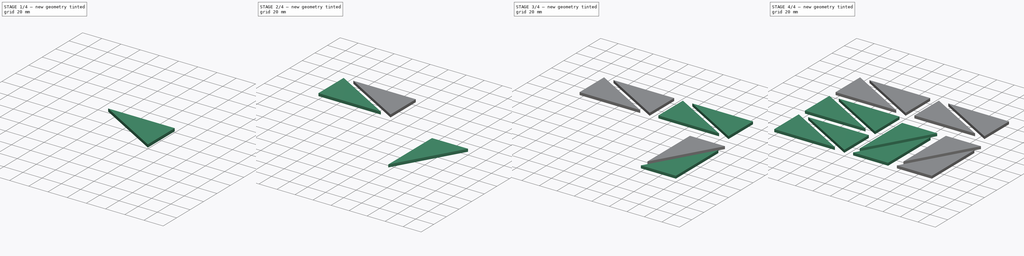
[diagram: build sequence overview — one tinted view per stage of 4, left to right]
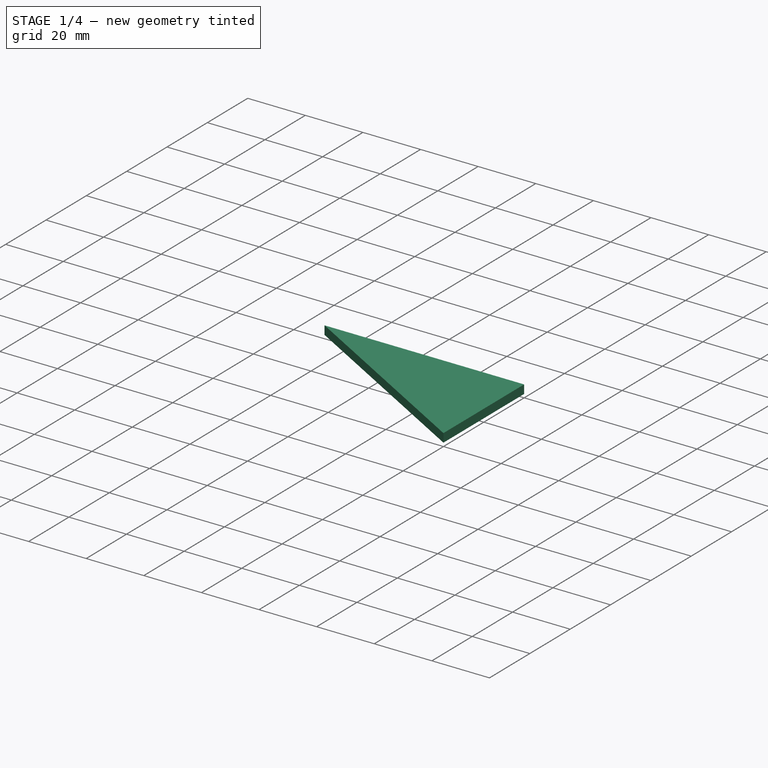
[diagram: stage 1 of 4 — iso view after this stage's code; geometry added in this stage tinted green]
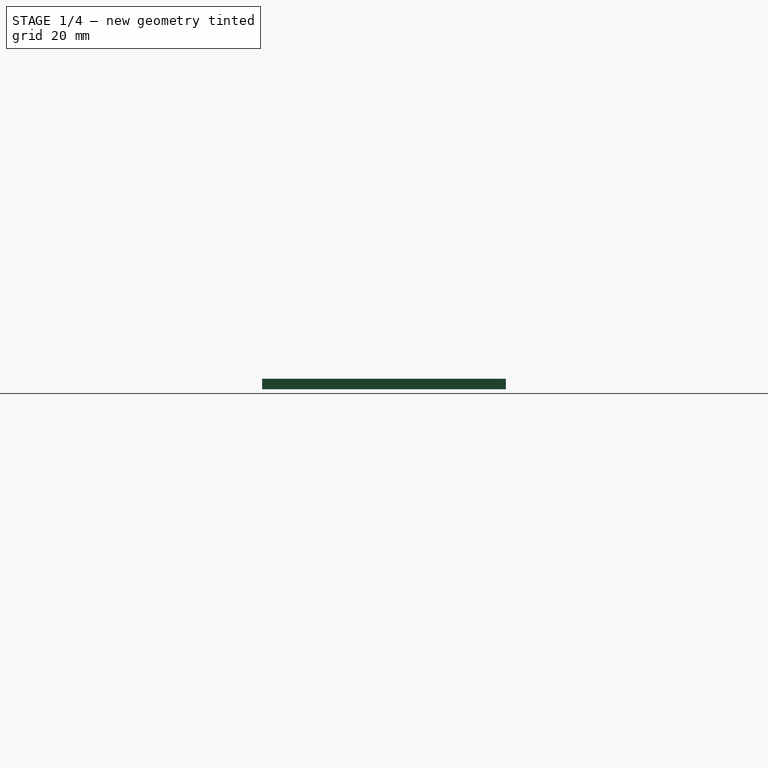
[diagram: stage 1 of 4 — front view after this stage's code; geometry added in this stage tinted green]
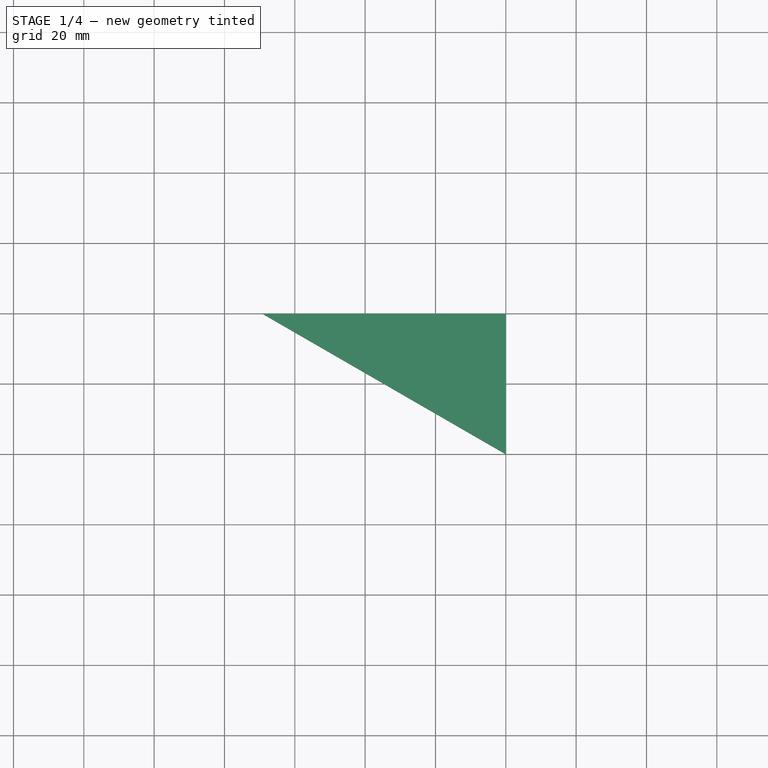
[diagram: stage 1 of 4 — top view after this stage's code; geometry added in this stage tinted green]
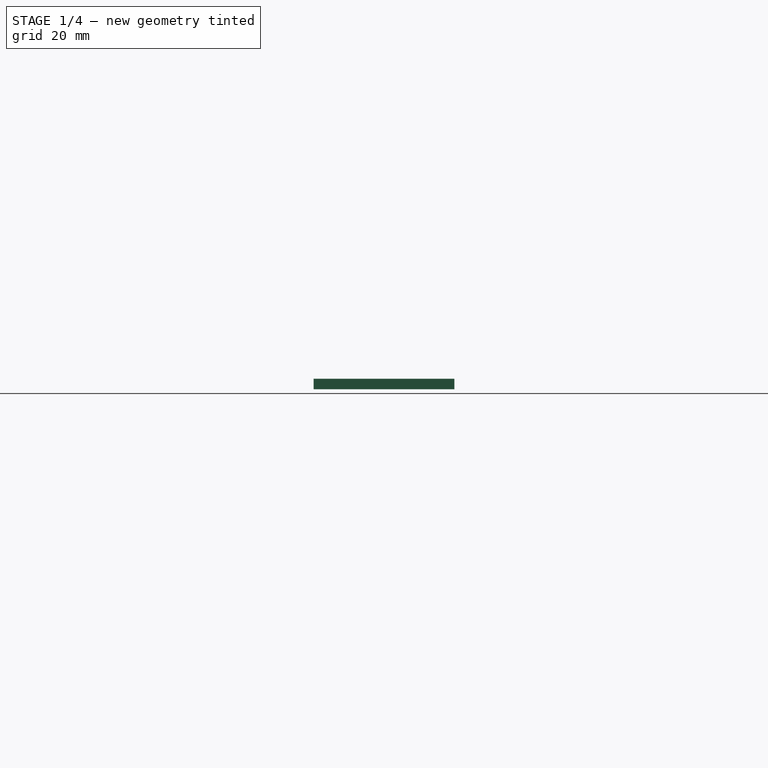
[diagram: stage 1 of 4 — right view after this stage's code; geometry added in this stage tinted green]
FCSTD DOCUMENT  (FreeCAD 0.17R13247 (Git))
Label: Triangulos-constructivos_parametricos
License: CreativeCommons Attribution-ShareAlike
LicenseURL: http://creativecommons.org/licenses/by-sa/4.0/
objects: Part::FeaturePython×11, Sketcher::SketchObject×1, PartDesign::Pad×1, PartDesign::Body×1, Spreadsheet::Sheet×1, Part::MultiFuse×1
note: 16 computed .brp shape members not serialized (recipe doc carries the construction recipe); baked Part::Feature solids carry a one-line shape summary decoded from their .brp

FEATURE [Sketcher::SketchObject] Sketch  label="Triangulo-rectangulo-30grados"
  MapMode = 5
  Support = -> [XY_Plane]
  expr: Constraints[7] = Hoja_parametrizar_lado.lado
  sketch-geometry (3):
    g0: LineSegment StartX=0 StartY=40 StartZ=0 EndX=0 EndY=0 EndZ=0
    g1: LineSegment StartX=0 StartY=0 StartZ=0 EndX=69.282 EndY=0 EndZ=0
    g2: LineSegment StartX=69.282 StartY=0 StartZ=0 EndX=0 EndY=40 EndZ=0
  constraints (8):
    c: PointOnObject(g0,g-2)
    c: Coincident(g0,g-1)
    c: Coincident(g0,g1)
    c: Horizontal(g1)
    c: Coincident(g1,g2)
    c: Coincident(g2,g0)
    c: Angle(g2,g1) = 0.523599
    c: DistanceY(g0,g0) = 40
FEATURE [PartDesign::Pad] Pad  label="Triangulo-constructor"
  Length = 3
  Length2 = 100
  Profile = -> Sketch
  Refine = true
  Type = 0
FEATURE [PartDesign::Body] Body
  Group = -> [Sketch,Pad]
  Origin = -> Origin
  Tip = -> Pad
FEATURE [Part::FeaturePython] Clone  label="Triangulo-constructor2"  # Draft clone (typed FeaturePython)
  AttacherType = Attacher::AttachEngine3D
  Fuse = false
  Objects = -> [Pad]
  Placement = pos=(80,40,0) rot=(0,0,1;3.14159rad)
  Scale = (1,1,1)
  expr: Placement.Base.y = Hoja_parametrizar_lado.lado
  expr: Placement.Base.x = Hoja_parametrizar_lado.lado * 2
FEATURE [Part::FeaturePython] Clone010  label="Triangulo-constructor12"  # Draft clone (typed FeaturePython)
  AttacherType = Attacher::AttachEngine3D
  Fuse = false
  Objects = -> [Clone]
  Placement = pos=(80,140,0) rot=(0,0,1;3.14159rad)
  Scale = (1,1,1)
  expr: Placement.Base.x = Hoja_parametrizar_lado.lado * 2
  expr: Placement.Base.y = Hoja_parametrizar_lado.lado * 3 + 20
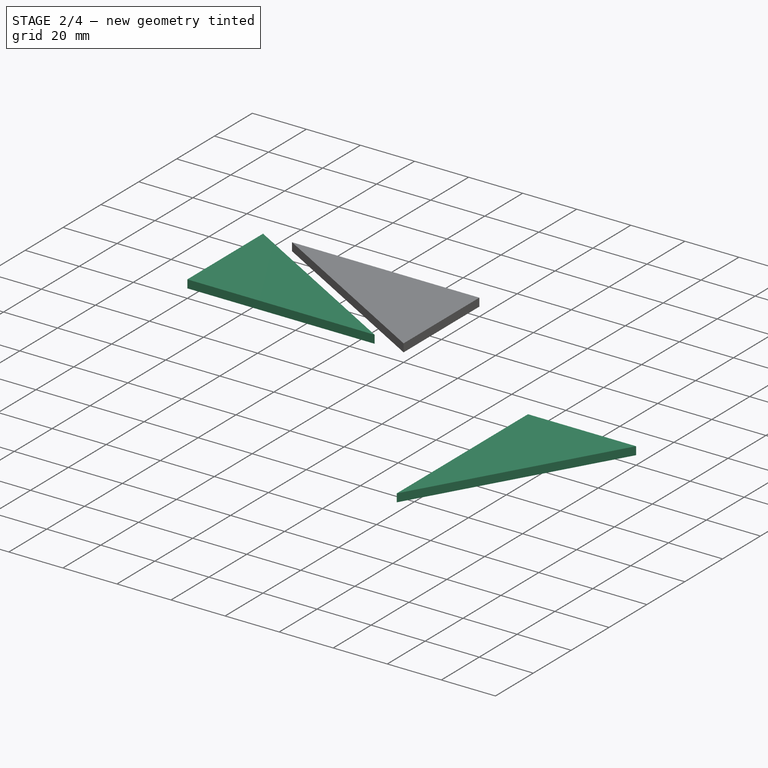
[diagram: stage 2 of 4 — iso view after this stage's code; geometry added in this stage tinted green]
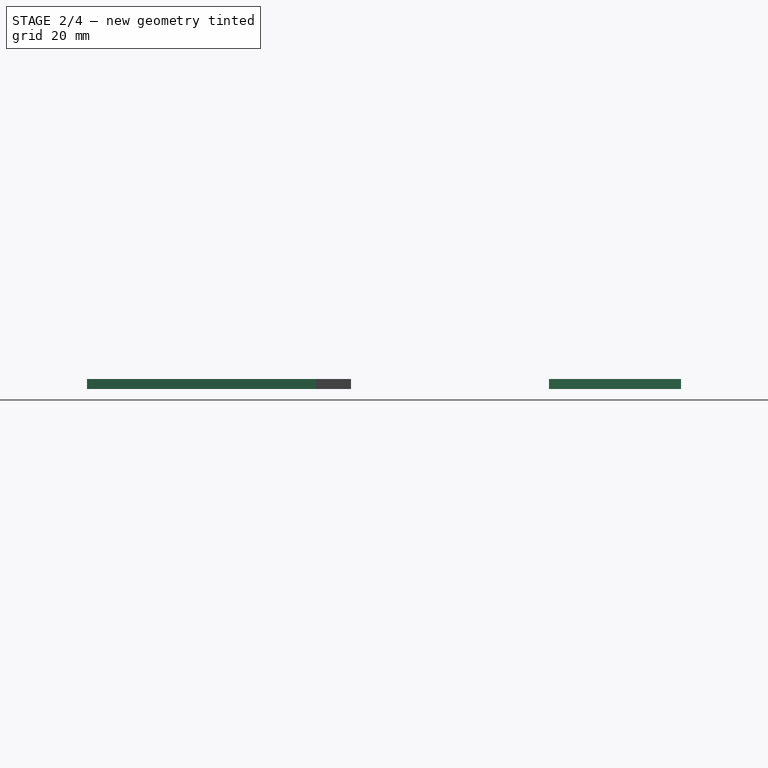
[diagram: stage 2 of 4 — front view after this stage's code; geometry added in this stage tinted green]
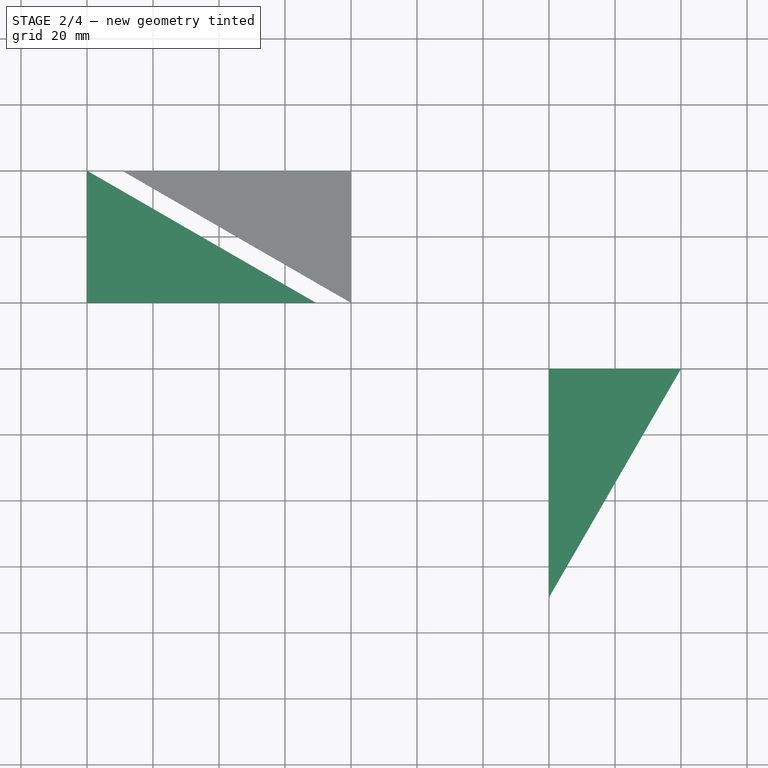
[diagram: stage 2 of 4 — top view after this stage's code; geometry added in this stage tinted green]
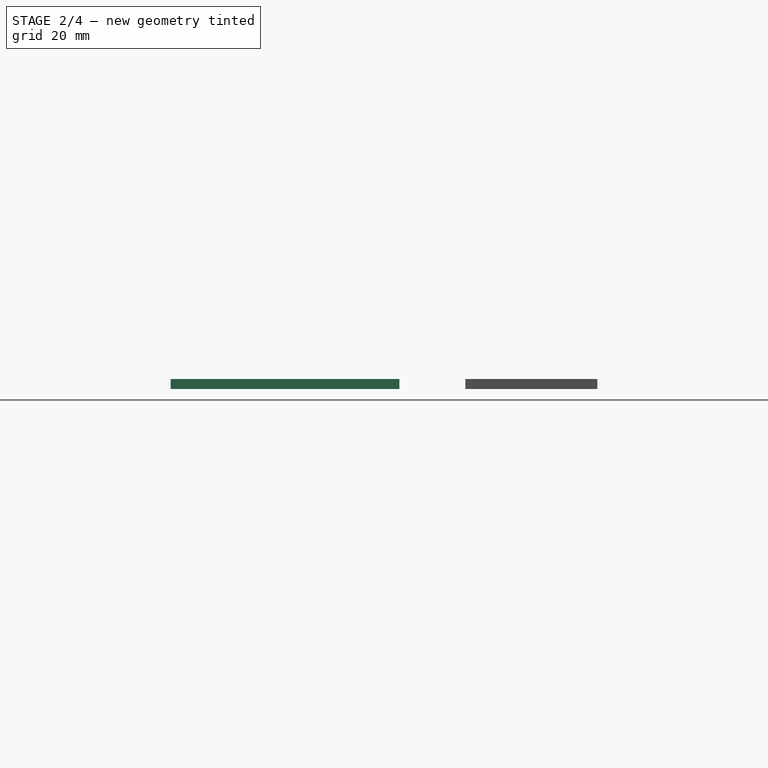
[diagram: stage 2 of 4 — right view after this stage's code; geometry added in this stage tinted green]
FEATURE [Part::FeaturePython] Clone004  label="Triangulo-constructor6"  # Draft clone (typed FeaturePython)
  AttacherType = Attacher::AttachEngine3D
  Fuse = false
  Objects = -> [Clone]
  Placement = pos=(80,90,0) rot=(0,0,1;3.14159rad)
  Scale = (1,1,1)
  expr: Placement.Base.y = Hoja_parametrizar_lado.lado * 2 + 10
  expr: Placement.Base.x = Hoja_parametrizar_lado.lado * 2
FEATURE [Part::FeaturePython] Clone008  label="Triangulo-constructor10"  # Draft clone (typed FeaturePython)
  AttacherType = Attacher::AttachEngine3D
  Fuse = false
  Objects = -> [Clone004]
  Placement = pos=(140,80,0) rot=(0,0,1;4.71239rad)
  Scale = (1,1,1)
  expr: Placement.Base.y = Hoja_parametrizar_lado.lado * 2
  expr: Placement.Base.x = Hoja_parametrizar_lado.lado * 3 + 20
FEATURE [Part::FeaturePython] Clone009  label="Triangulo-constructor11"  # Draft clone (typed FeaturePython)
  AttacherType = Attacher::AttachEngine3D
  Fuse = false
  Objects = -> [Pad]
  Placement = pos=(0,100,0) rot=(0,0,1;0rad)
  Scale = (1,1,1)
  expr: Placement.Base.y = Hoja_parametrizar_lado.lado * 2 + 20
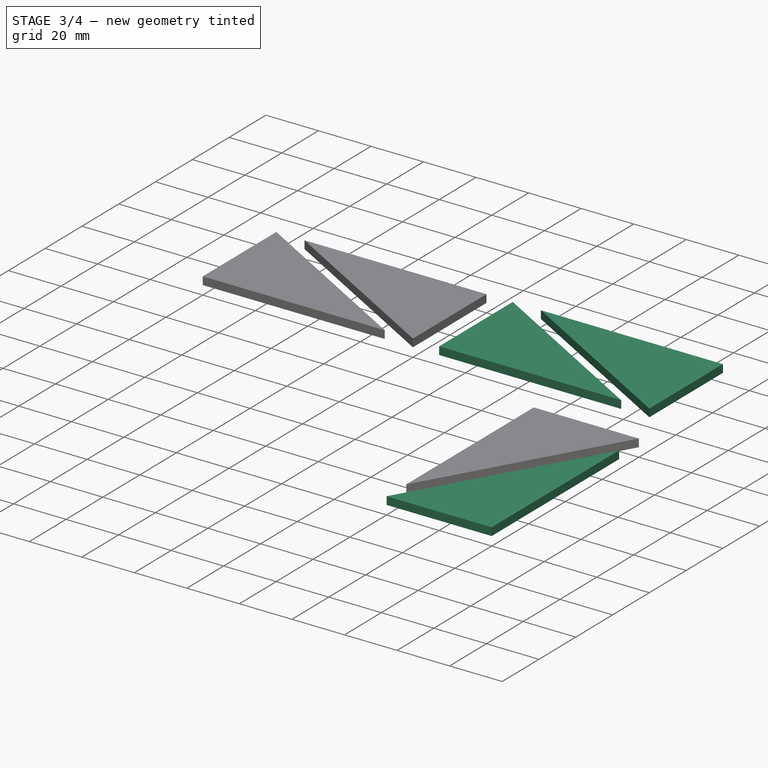
[diagram: stage 3 of 4 — iso view after this stage's code; geometry added in this stage tinted green]
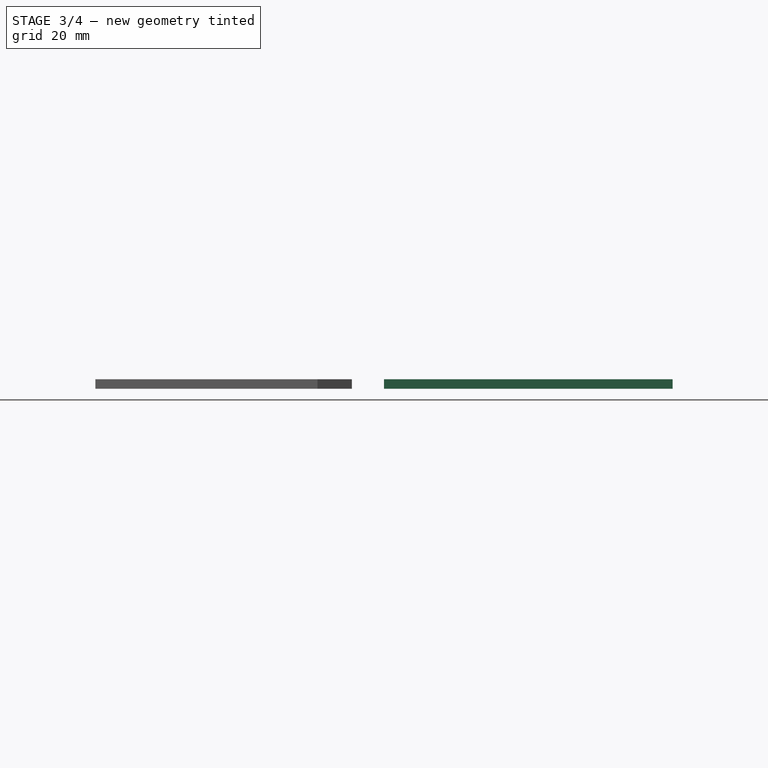
[diagram: stage 3 of 4 — front view after this stage's code; geometry added in this stage tinted green]
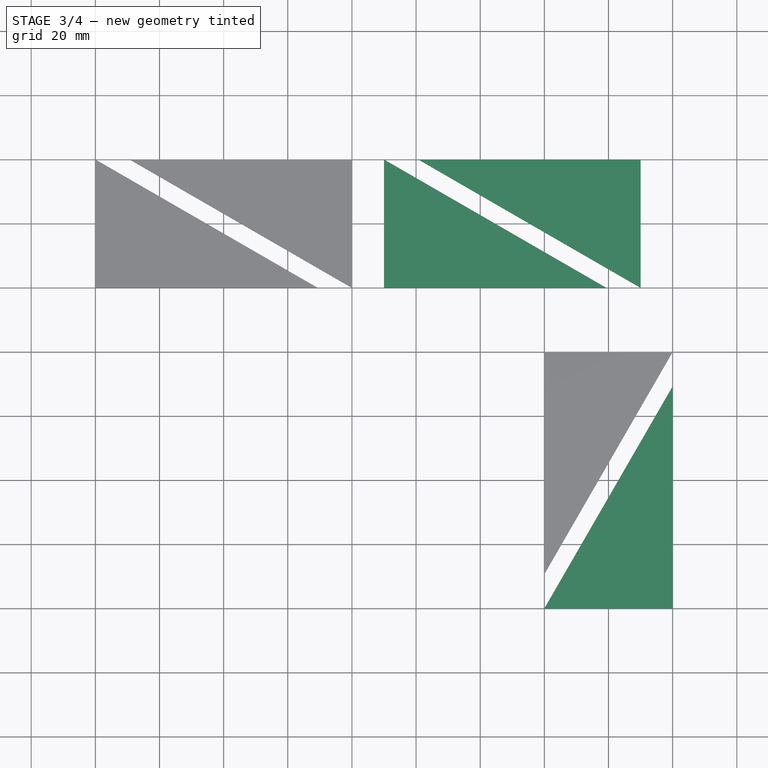
[diagram: stage 3 of 4 — top view after this stage's code; geometry added in this stage tinted green]
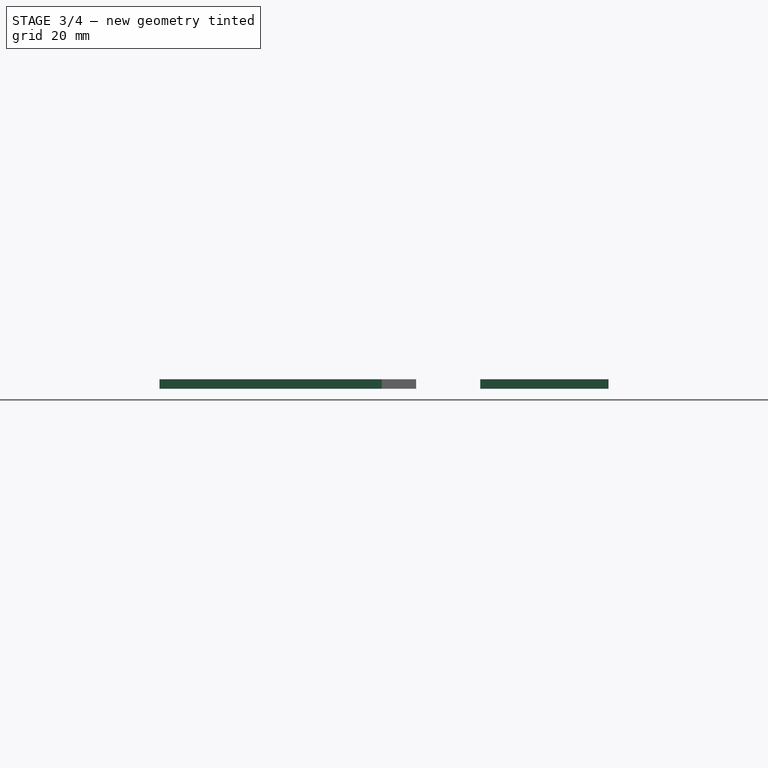
[diagram: stage 3 of 4 — right view after this stage's code; geometry added in this stage tinted green]
FEATURE [Part::FeaturePython] Clone003  label="Triangulo-constructor5"  # Draft clone (typed FeaturePython)
  AttacherType = Attacher::AttachEngine3D
  Fuse = false
  Objects = -> [Pad]
  Placement = pos=(0,50,0) rot=(0,0,1;0rad)
  Scale = (1,1,1)
  expr: Placement.Base.y = Hoja_parametrizar_lado.lado + 10
FEATURE [Spreadsheet::Sheet] Spreadsheet  label="Hoja_parametrizar_lado"
  cells = A1=Parametrizacion de los triangulos constructivos; A3=Lado; B3(lado)=40
FEATURE [Part::FeaturePython] Clone005  label="Triangulo-constructor7"  # Draft clone (typed FeaturePython)
  AttacherType = Attacher::AttachEngine3D
  Fuse = false
  Objects = -> [Pad]
  Placement = pos=(90,100,0) rot=(0,0,1;0rad)
  Scale = (1,1,1)
  expr: Placement.Base.y = Hoja_parametrizar_lado.lado * 2 + 20
  expr: Placement.Base.x = Hoja_parametrizar_lado.lado * 2 + 10
FEATURE [Part::FeaturePython] Clone006  label="Triangulo-constructor8"  # Draft clone (typed FeaturePython)
  AttacherType = Attacher::AttachEngine3D
  Fuse = false
  Objects = -> [Clone]
  Placement = pos=(170,140,0) rot=(0,0,1;3.14159rad)
  Scale = (1,1,1)
  expr: Placement.Base.y = Hoja_parametrizar_lado.lado * 3 + 20
  expr: Placement.Base.x = Hoja_parametrizar_lado.lado * 4 + 10
FEATURE [Part::FeaturePython] Clone007  label="Triangulo-constructor9"  # Draft clone (typed FeaturePython)
  AttacherType = Attacher::AttachEngine3D
  Fuse = false
  Objects = -> [Clone003]
  Placement = pos=(180,0,0) rot=(0,0,1;1.5708rad)
  Scale = (1,1,1)
  expr: Placement.Base.x = Hoja_parametrizar_lado.lado * 4 + 20
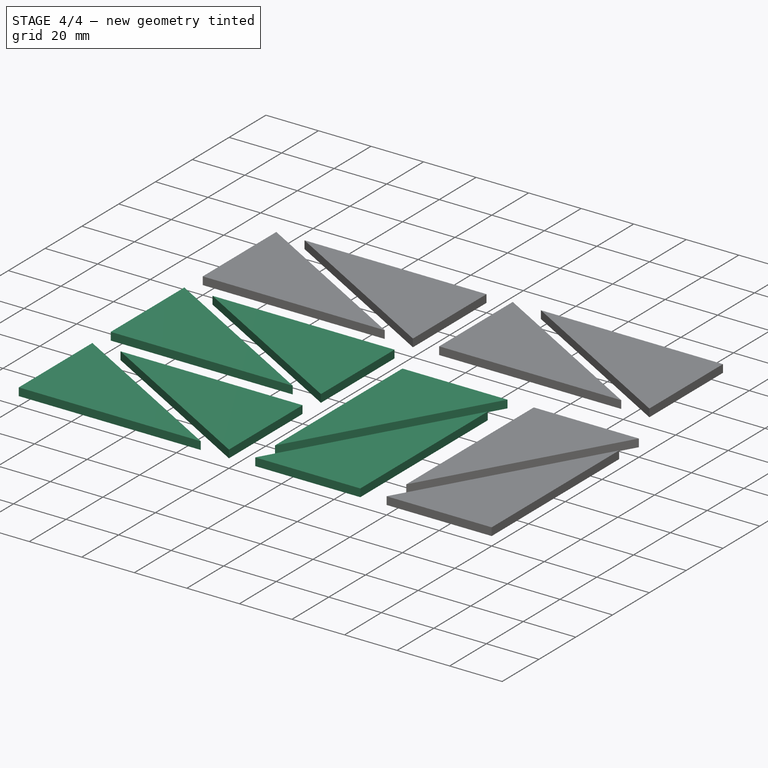
[diagram: stage 4 of 4 — iso view after this stage's code; geometry added in this stage tinted green]
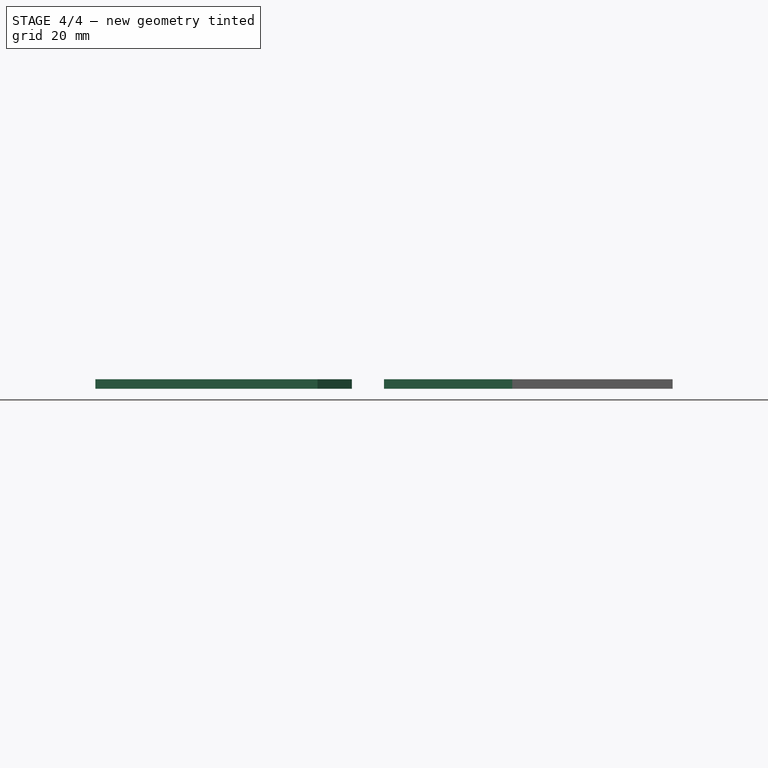
[diagram: stage 4 of 4 — front view after this stage's code; geometry added in this stage tinted green]
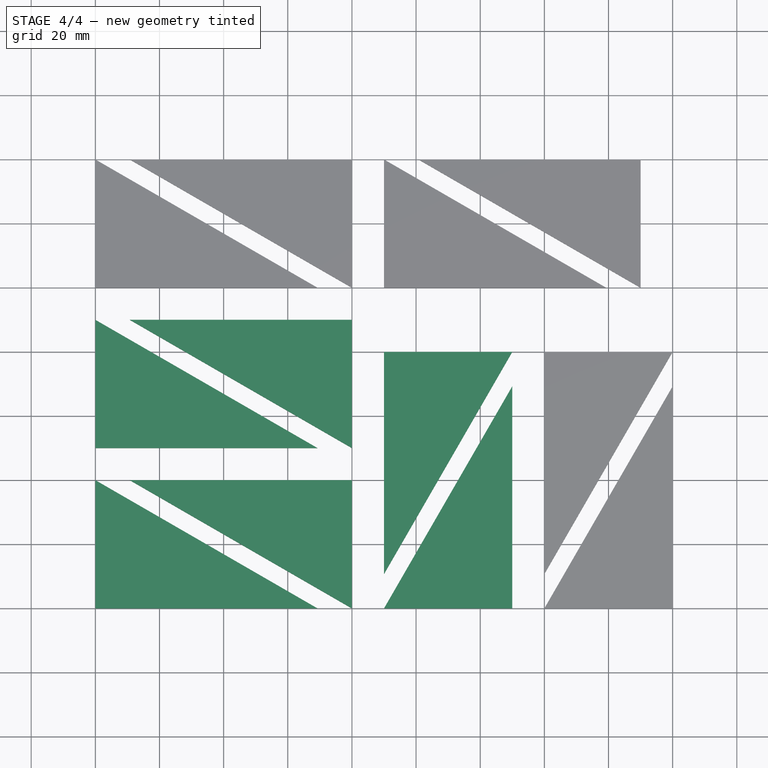
[diagram: stage 4 of 4 — top view after this stage's code; geometry added in this stage tinted green]
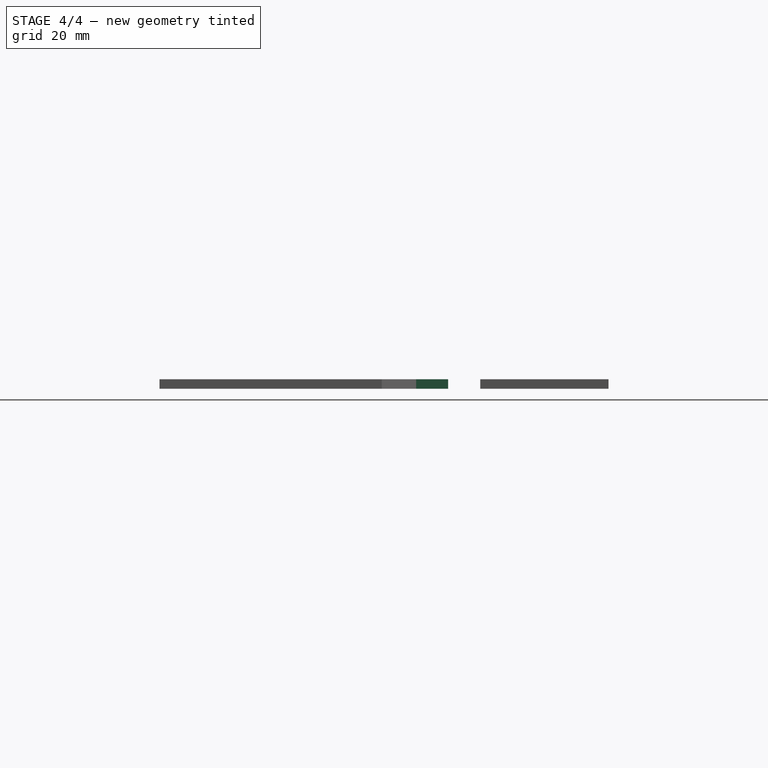
[diagram: stage 4 of 4 — right view after this stage's code; geometry added in this stage tinted green]
FEATURE [Part::FeaturePython] Clone001  label="Triangulo-constructor3"  # Draft clone (typed FeaturePython)
  AttacherType = Attacher::AttachEngine3D
  Fuse = false
  Objects = -> [Clone]
  Placement = pos=(130,0,0) rot=(0,0,1;1.5708rad)
  Scale = (1,1,1)
  expr: Placement.Base.x = Hoja_parametrizar_lado.lado * 3 + 10
FEATURE [Part::FeaturePython] Clone002  label="Triangulo-constructor4"  # Draft clone (typed FeaturePython)
  AttacherType = Attacher::AttachEngine3D
  Fuse = false
  Objects = -> [Pad]
  Placement = pos=(90,80,0) rot=(0,0,1;4.71239rad)
  Scale = (1,1,1)
  expr: Placement.Base.y = Hoja_parametrizar_lado.lado * 2
  expr: Placement.Base.x = Hoja_parametrizar_lado.lado * 2 + 10
FEATURE [Part::MultiFuse] Fusion  label="Conjunto_Triangulos_constructivos"
  Refine = true
  Shapes = -> [Pad,Clone,Clone001,Clone002,Clone003,Clone004,Clone005,Clone006,Clone007,Clone008,Clone009,Clone010]
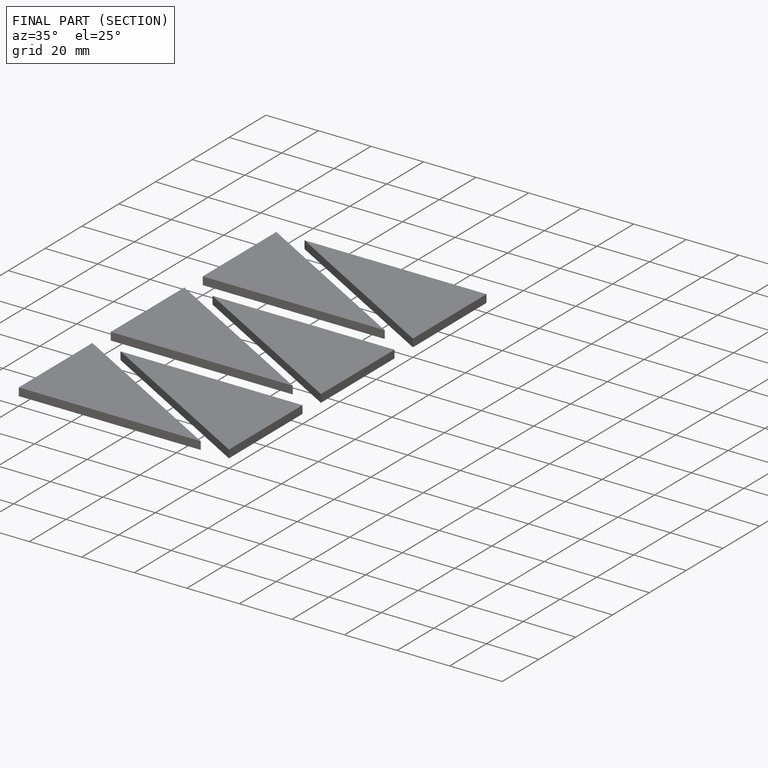
[diagram: finished part — half-section view (interior)]
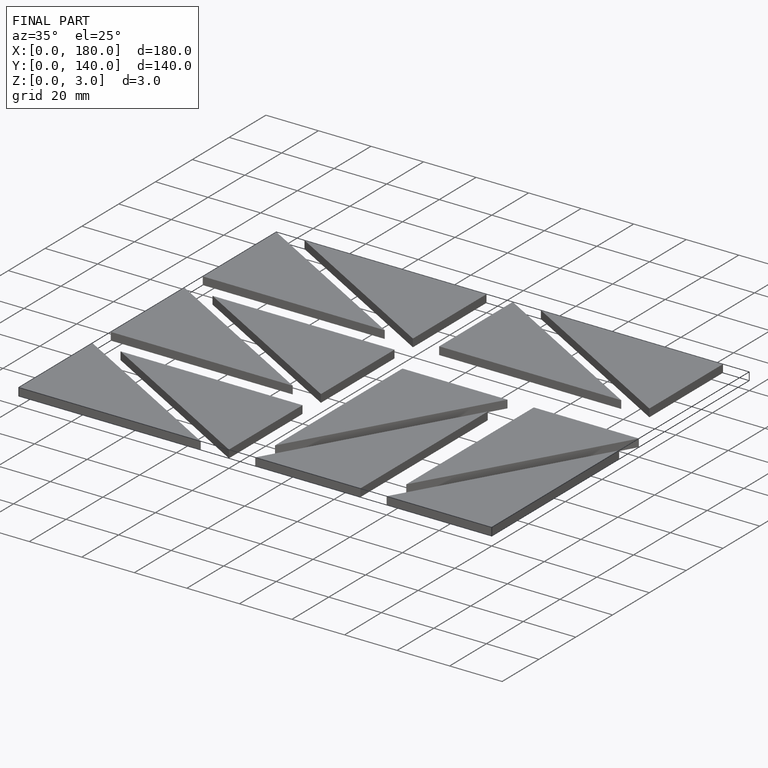
[diagram: finished part — iso view with bounding-box wireframe]
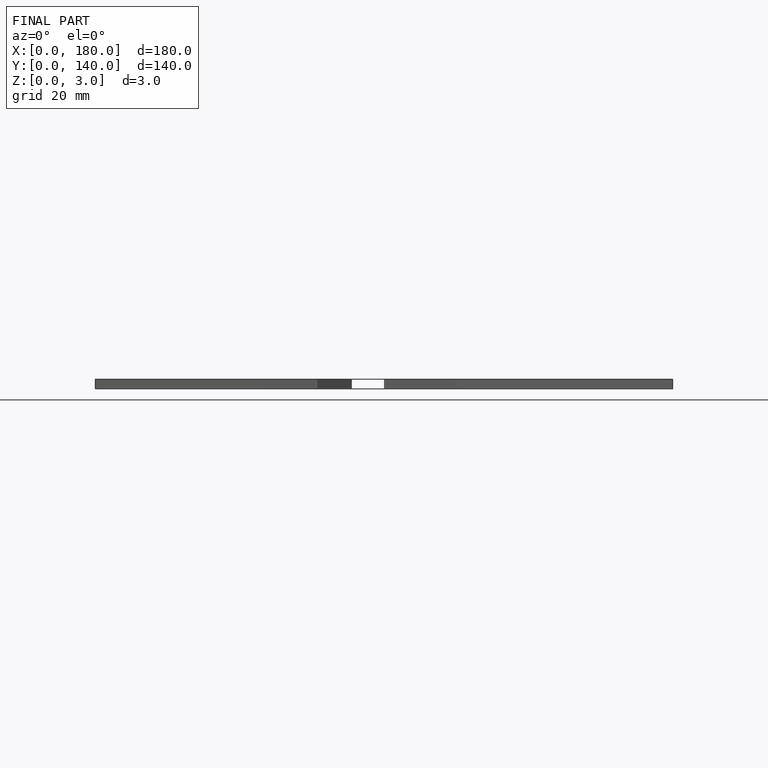
[diagram: finished part — front view with bounding-box wireframe]
